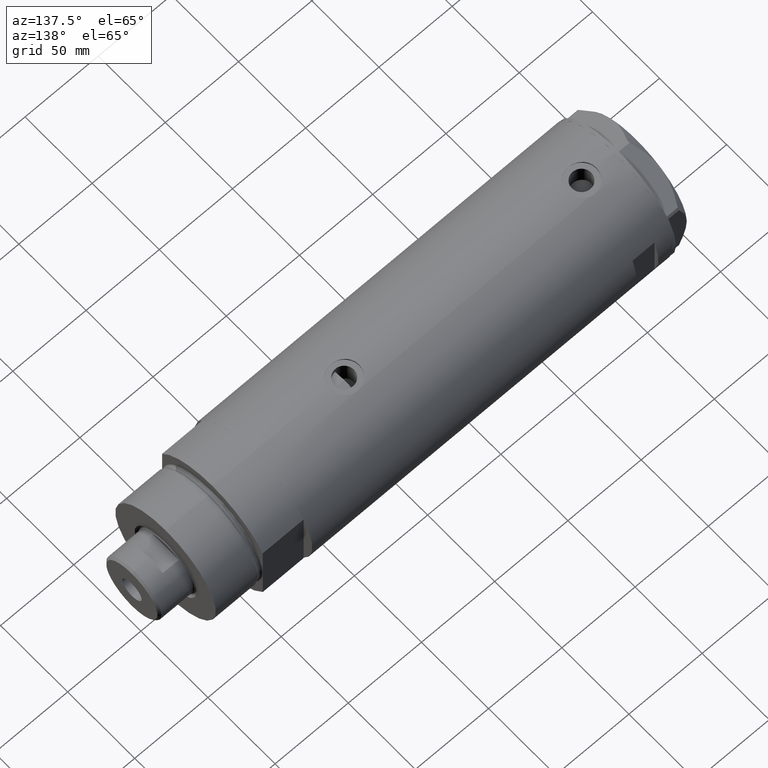
[diagram: clean part render]
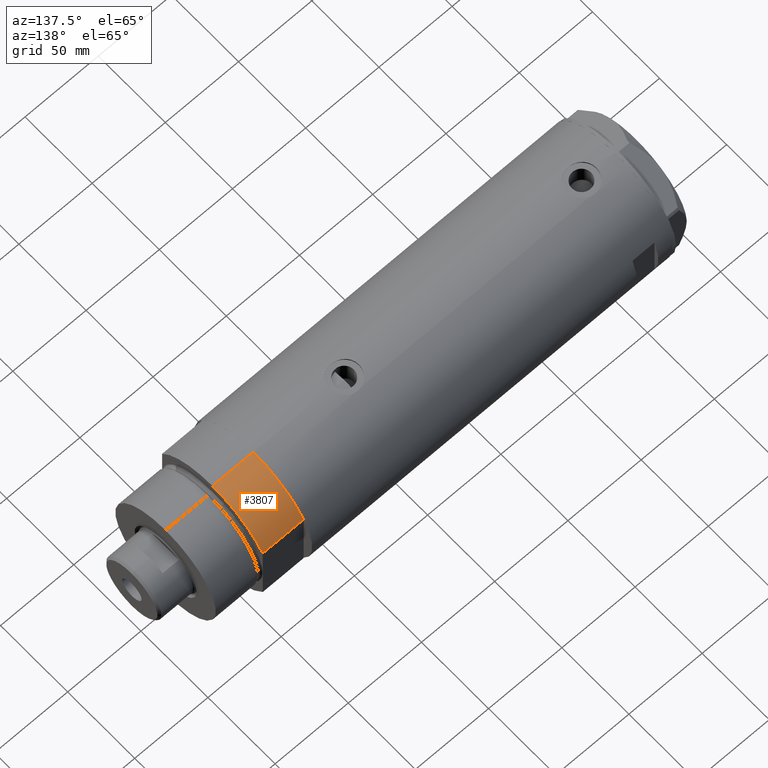
[diagram: same view with one face highlighted and labeled with its STEP entity id]
A machine part, auxiliary view. The second image highlights one B-rep face of the part: STEP entity #3807.
In plain terms, the highlighted cylindrical surface (partial cylindrical patch) has radius 44 mm, axis along (-1, -0, 0).
Its self-contained STEP definition (entity closure, byte-faithful):
#256 = DIRECTION ( 'NONE',  ( -0.000000000000000000, -0.000000000000000000, 1.000000000000000000 ) ) ;
#269 = CIRCLE ( 'NONE', #4090, 44.00000000000000000 ) ;
#364 = VERTEX_POINT ( 'NONE', #4103 ) ;
#378 = CARTESIAN_POINT ( 'NONE',  ( 0.000000000000000000, 0.000000000000000000, 0.000000000000000000 ) ) ;
#697 = EDGE_CURVE ( 'NONE', #824, #364, #269, .T. ) ;
#824 = VERTEX_POINT ( 'NONE', #2500 ) ;
#956 = EDGE_CURVE ( 'NONE', #2361, #4288, #3793, .T. ) ;
#982 = CARTESIAN_POINT ( 'NONE',  ( -23.01629857296780557, 37.50000000000000000, 0.000000000000000000 ) ) ;
#1141 = CYLINDRICAL_SURFACE ( 'NONE', #2392, 44.00000000000000000 ) ;
#1197 = DIRECTION ( 'NONE',  ( -1.000000000000000000, 0.000000000000000000, 0.000000000000000000 ) ) ;
#1682 = EDGE_CURVE ( 'NONE', #4288, #364, #4302, .T. ) ;
#1779 = DIRECTION ( 'NONE',  ( 0.000000000000000000, 0.000000000000000000, 1.000000000000000000 ) ) ;
#1834 = DIRECTION ( 'NONE',  ( -0.000000000000000000, -0.000000000000000000, -1.000000000000000000 ) ) ;
#1964 = DIRECTION ( 'NONE',  ( 1.000000000000000000, 0.000000000000000000, 0.000000000000000000 ) ) ;
#2046 = EDGE_CURVE ( 'NONE', #824, #2361, #4509, .T. ) ;
#2249 = CARTESIAN_POINT ( 'NONE',  ( -44.00000000000000000, 0.000000000000000000, 27.89999999999999858 ) ) ;
#2304 = VECTOR ( 'NONE', #256, 1000.000000000000000 ) ;
#2361 = VERTEX_POINT ( 'NONE', #3715 ) ;
#2392 = AXIS2_PLACEMENT_3D ( 'NONE', #3324, #3988, #1197 ) ;
#2500 = CARTESIAN_POINT ( 'NONE',  ( -23.01629857296780557, 37.50000000000000000, 0.000000000000000000 ) ) ;
#2813 = EDGE_LOOP ( 'NONE', ( #2868, #3779, #3317, #3671 ) ) ;
#2863 = CARTESIAN_POINT ( 'NONE',  ( -44.00000000000000000, 0.000000000000000000, 27.89999999999999858 ) ) ;
#2868 = ORIENTED_EDGE ( 'NONE', *, *, #1682, .F. ) ;
#3043 = DIRECTION ( 'NONE',  ( 0.000000000000000000, 0.000000000000000000, 1.000000000000000000 ) ) ;
#3251 = FACE_OUTER_BOUND ( 'NONE', #2813, .T. ) ;
#3317 = ORIENTED_EDGE ( 'NONE', *, *, #2046, .F. ) ;
#3324 = CARTESIAN_POINT ( 'NONE',  ( 0.000000000000000000, 0.000000000000000000, 27.89999999999999858 ) ) ;
#3671 = ORIENTED_EDGE ( 'NONE', *, *, #697, .T. ) ;
#3715 = CARTESIAN_POINT ( 'NONE',  ( -23.01629857296780557, 37.50000000000000000, 27.89999999999999858 ) ) ;
#3744 = CARTESIAN_POINT ( 'NONE',  ( 0.000000000000000000, 0.000000000000000000, 27.89999999999999858 ) ) ;
#3779 = ORIENTED_EDGE ( 'NONE', *, *, #956, .F. ) ;
#3793 = CIRCLE ( 'NONE', #4382, 44.00000000000000000 ) ;
#3807 = ADVANCED_FACE ( 'NONE', ( #3251 ), #1141, .T. ) ;
#3953 = VECTOR ( 'NONE', #1834, 1000.000000000000000 ) ;
#3988 = DIRECTION ( 'NONE',  ( -0.000000000000000000, -0.000000000000000000, -1.000000000000000000 ) ) ;
#4090 = AXIS2_PLACEMENT_3D ( 'NONE', #378, #1779, #4468 ) ;
#4103 = CARTESIAN_POINT ( 'NONE',  ( -44.00000000000000000, 0.000000000000000000, 0.000000000000000000 ) ) ;
#4288 = VERTEX_POINT ( 'NONE', #2249 ) ;
#4302 = LINE ( 'NONE', #2863, #3953 ) ;
#4382 = AXIS2_PLACEMENT_3D ( 'NONE', #3744, #3043, #1964 ) ;
#4468 = DIRECTION ( 'NONE',  ( 1.000000000000000000, 0.000000000000000000, 0.000000000000000000 ) ) ;
#4509 = LINE ( 'NONE', #982, #2304 ) ;